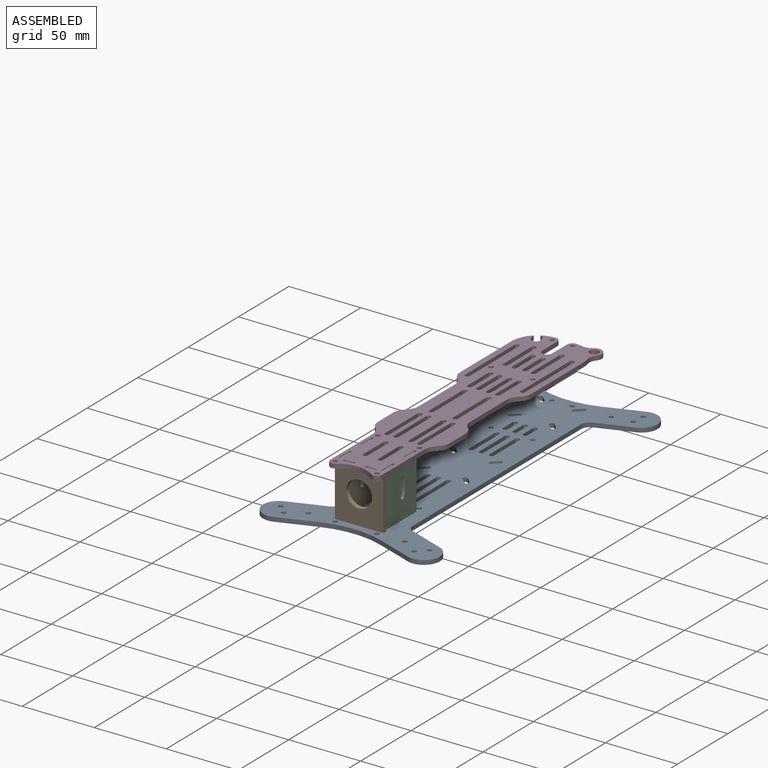
[diagram: assembled view]
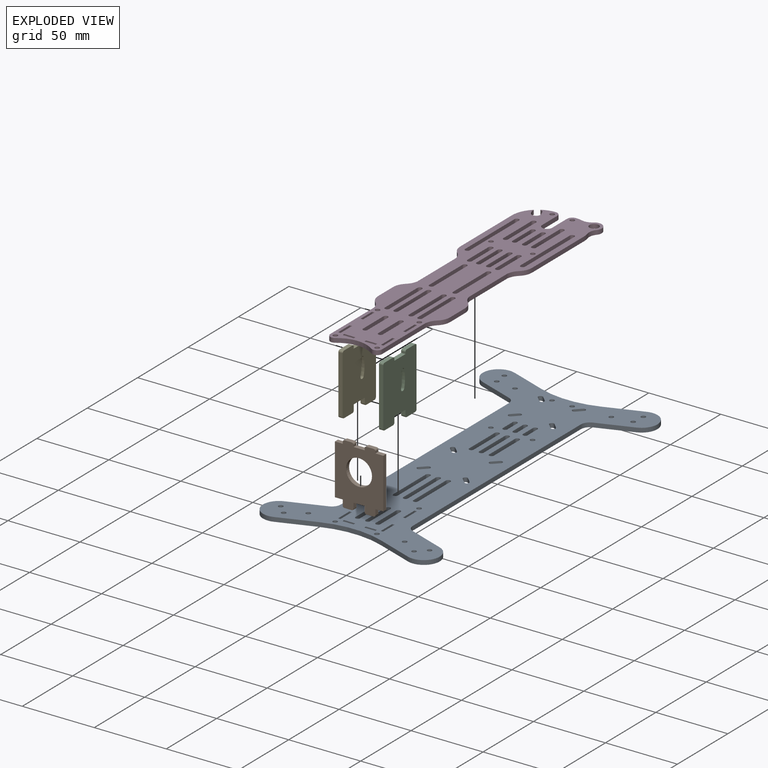
[diagram: exploded view]
GUIDED TOUR — MATED ASSEMBLY (Onshape document d694a171f62acf06d672b1ca, AutoMate assembly d694a171f62acf06d672b1ca_0cfcfd3deaf819cb69442fb5_4f47affb7bc48a1302ed9075_default)

This assembly has 5 components, labeled P0..P4 below (a component is one placed occurrence of a part; the same part can appear more than once), held together by 4 mates. A mate is a constraint between two components; its type names the relative motion it leaves free:
  FASTENED — locks the two components together rigidly (no relative motion).
Axis/direction vectors are unit vectors and 'through' points are millimeter coordinates, both in the assembly's world frame.

MATES
  1. FASTENED "Fastened 4": P3 <-> P1, direction (0.000, 0.000, -1.000) through (-141.13, -87.64, 19.75) mm
  2. FASTENED "Fastened 3": P0 <-> P4, direction (0.000, 0.000, 1.000) through (-145.51, -74.69, -15.25) mm
  3. FASTENED "Fastened 2": P0 <-> P2, direction (0.000, 0.000, 1.000) through (-114.21, -63.84, -15.25) mm
  4. FASTENED "Fastened 1": P1 <-> P0, direction (0.000, 0.000, -1.000) through (-118.43, -87.64, -15.25) mm

ASSEMBLY ORDER
  1. P3 — the base component [order verified]
  2. P0 [order verified]
  3. P1 [order verified]
  4. P4 [order verified]
  5. P2 [order verified]
Order-tag legend:
  [order verified] — this step's position reverses a verified removal order: the component was checked to insert without passing through the ones already placed.

Of the 5 components, 3 carry the full construction recipe — the FeatureScript program that regenerates the part's solid from scratch; the rest are supplied as boundary geometry only.
Each toured component is shown spotlighted twice — in the assembled view, then in the exploded view, where a leader line traces a displaced component back to its assembled socket (saturated green if recipe-attached, orange if geometry-only; every other component desaturated gray) — followed by its recipe or geometry summary and the mates that hold it.
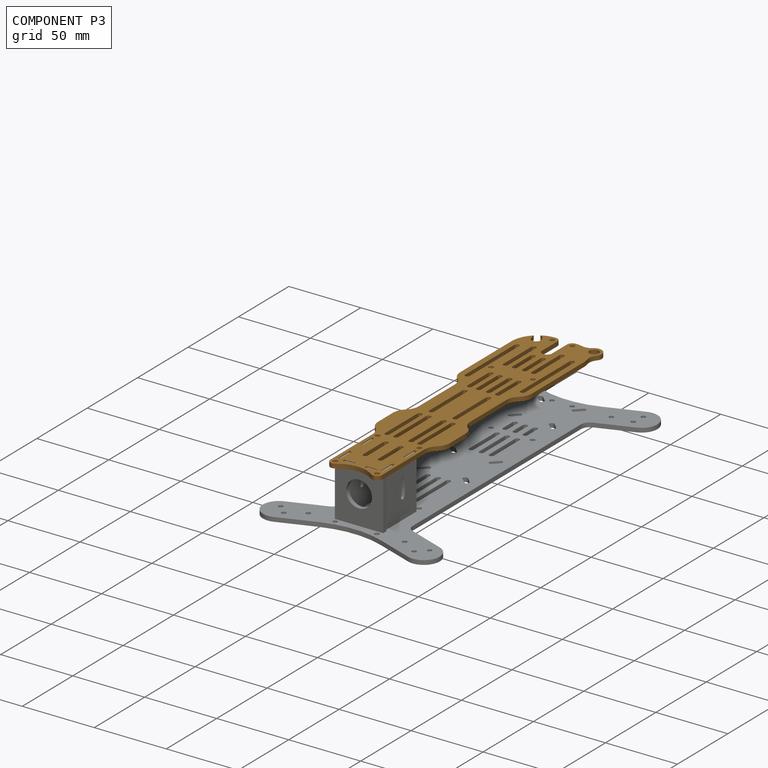
[diagram: component P3 — assembled]
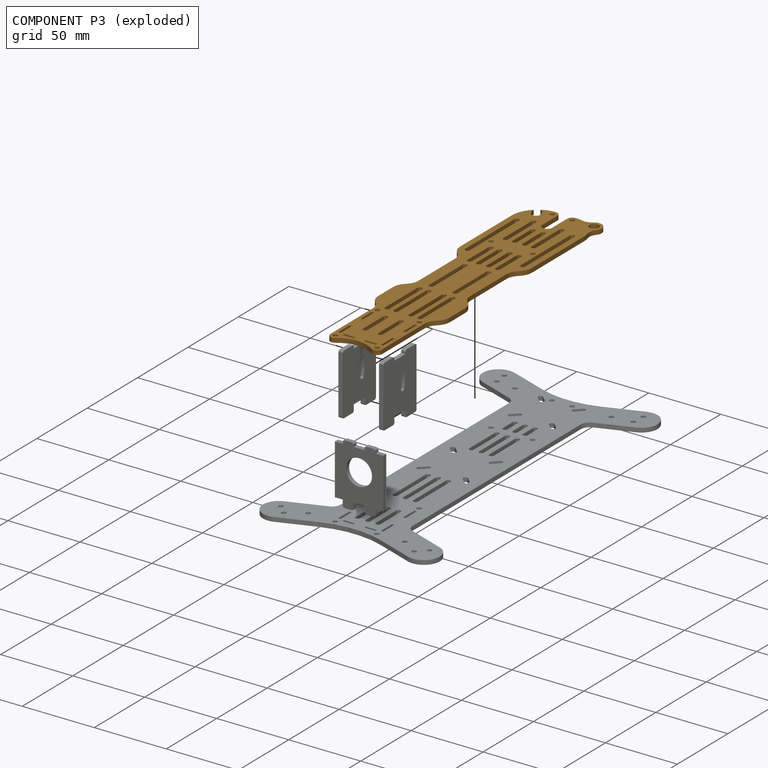
[diagram: component P3 — exploded]
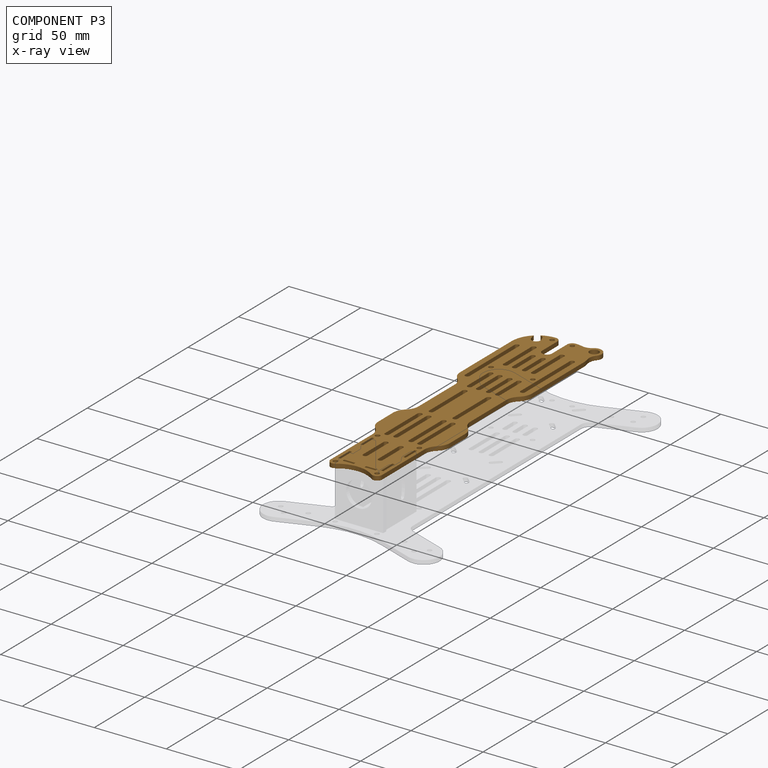
[diagram: component P3 — x-ray view]
COMPONENT P3 — geometry summary (no construction recipe available for this part):
  bounding box: 213.5 x 52.1 x 3.0 mm
  B-rep topology: 1 solid, 151 faces, 894 edges
  volume: 20496 mm^3 (61% of its bounding box)
  symmetry: mirror-symmetric across its z mid-plane
Held by: FASTENED mate "Fastened 4" to P1.
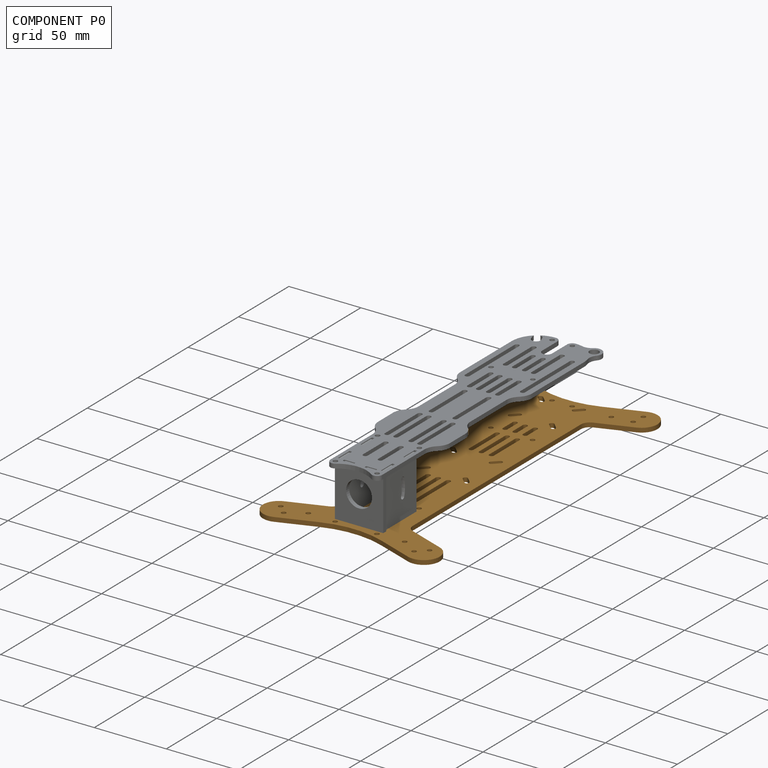
[diagram: component P0 — assembled]
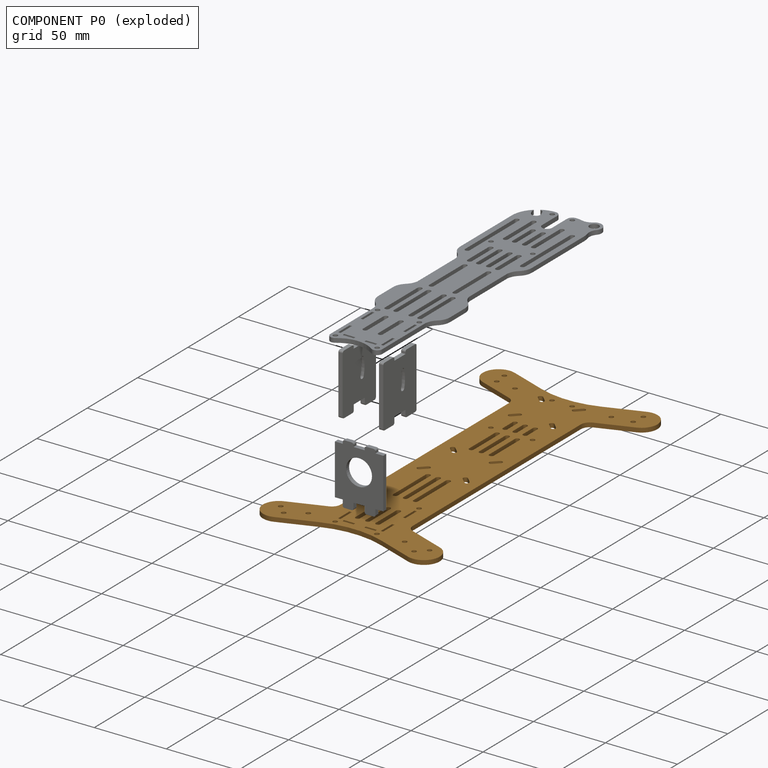
[diagram: component P0 — exploded]
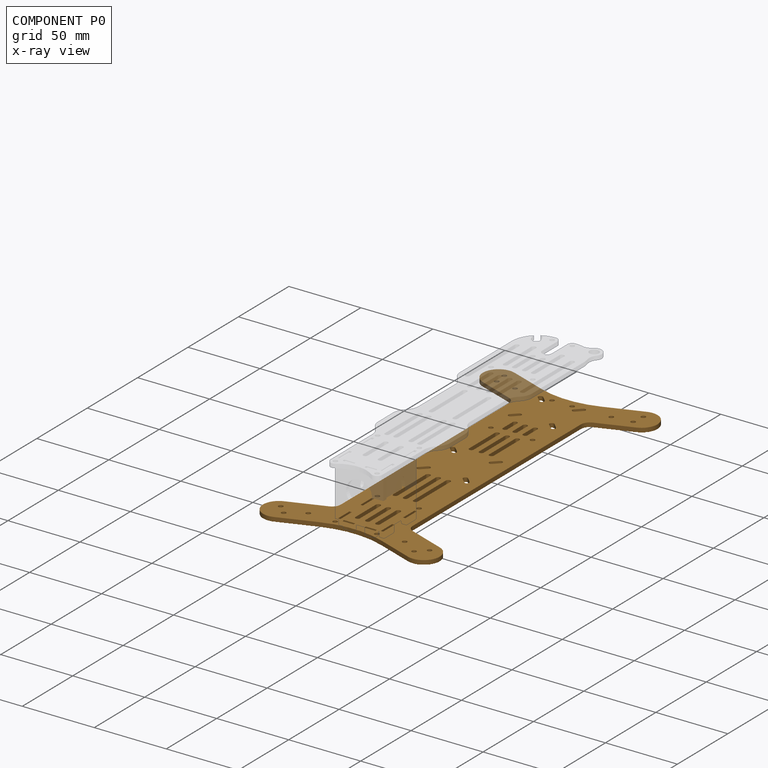
[diagram: component P0 — x-ray view]
COMPONENT P0 — geometry summary (no construction recipe available for this part):
  bounding box: 239.0 x 122.7 x 3.0 mm
  B-rep topology: 1 solid, 146 faces, 864 edges
  volume: 37556 mm^3 (43% of its bounding box)
  symmetry: 2-fold rotationally symmetric about the y axis; mirror-symmetric across its x mid-plane, z mid-plane
Held by: FASTENED mate "Fastened 3" to P4; FASTENED mate "Fastened 2" to P2; FASTENED mate "Fastened 1" to P1.
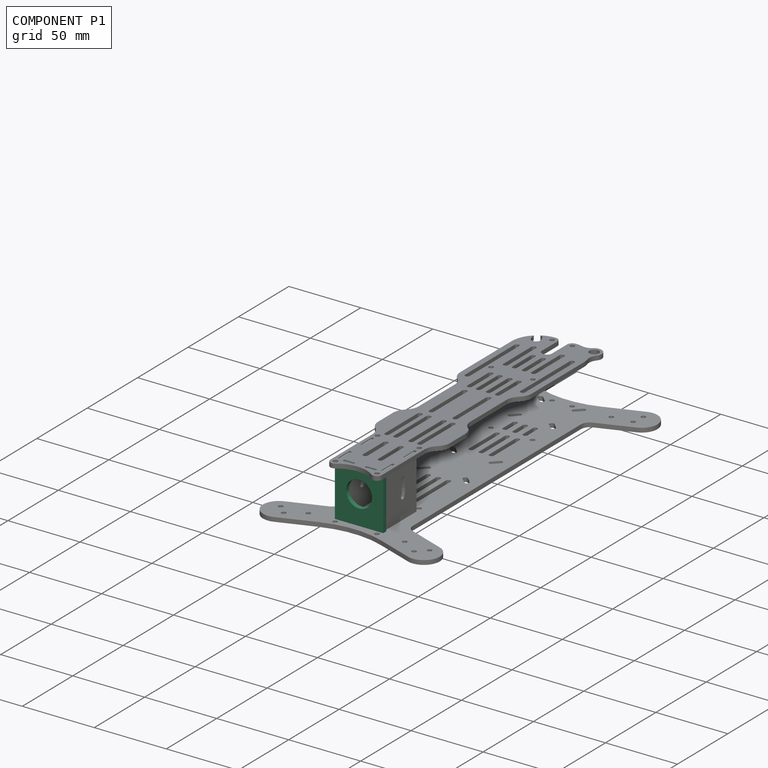
[diagram: component P1 — assembled]
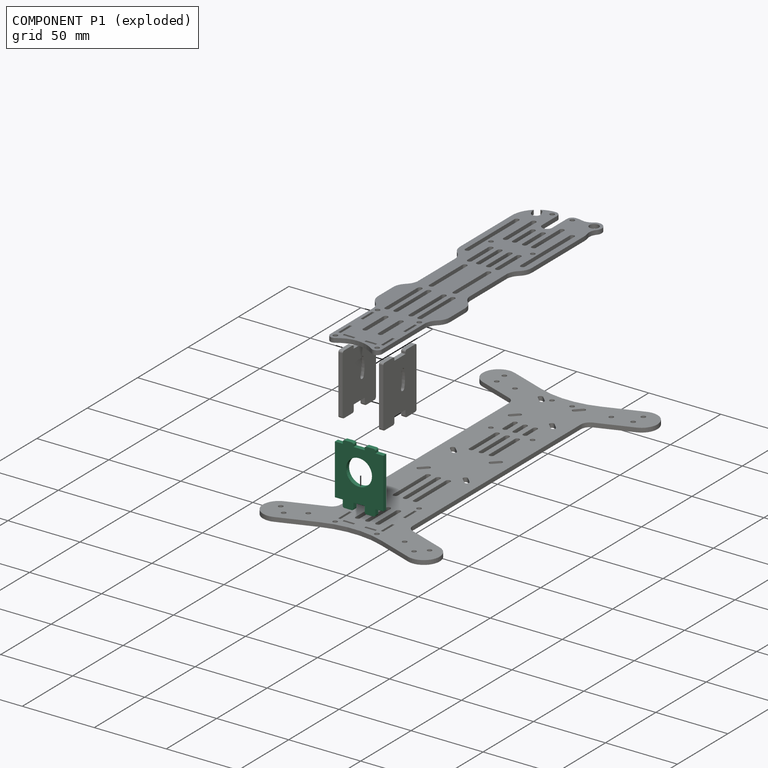
[diagram: component P1 — exploded]
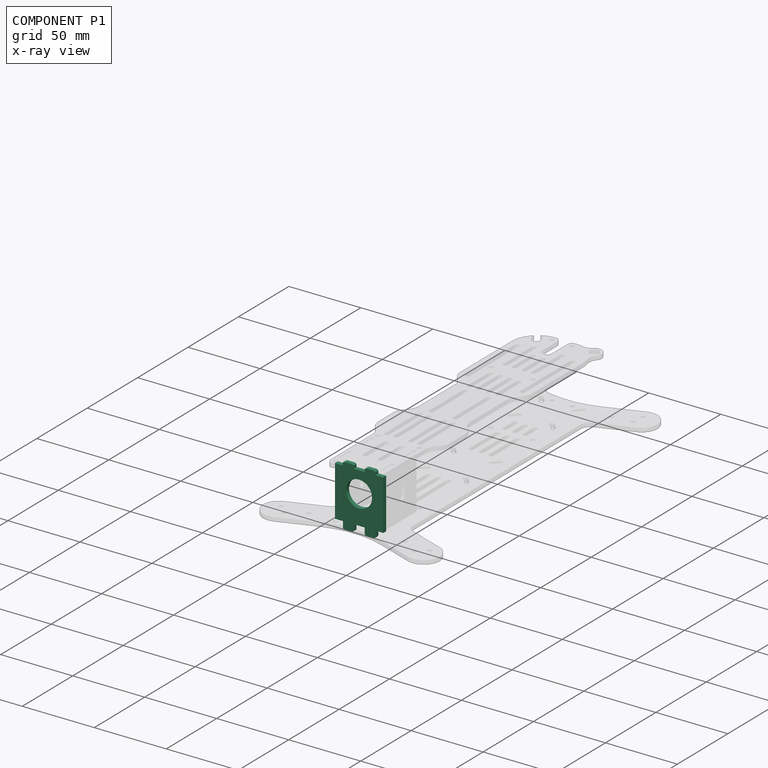
[diagram: component P1 — x-ray view]
COMPONENT P1 — recipe-attached (CADFS 00114414, mesh-verified: the recipe's output STEP matches this component's geometry to below the mesh-comparison resolution (tessellation chordal tolerance ~0.0814 mm)).
Held by: FASTENED mate "Fastened 4" to P3; FASTENED mate "Fastened 1" to P0.
Construction recipe (FeatureScript — the CAD program that rebuilds this solid; sketch coordinates are in the units given by the * unit suffixes, e.g. mm):

FeatureScript 1511;
import(path : "onshape/std/geometry.fs", version : "1511.0");
import(path : "onshape/std/common.fs", version : "1511.0");
const mm = millimeter;
const VERTEX = EntityType.VERTEX;
const EDGE = EntityType.EDGE;
const FACE = EntityType.FACE;
const BODY = EntityType.BODY;
function v(x, y){return vector(x, y);}
function OD(order){return orderDisambiguation(order);}
function OSD(set){return originalSetDisambiguation(set);}
function TD(topology){return topologyDisambiguation(topology);}
function TDD(query){return trueDependencyDisambiguation(query);}
function sQuery(a, b, c) {return sketchEntityQuery(a, b, c);}

annotation { "Feature Type Name" : "Feature", "Feature Type Description" : "" }
export const myFeature = defineFeature(function(context is Context, id is Id, definition is map)
    precondition{}
    {
        {
            var Q0;
            Q0=qCreatedBy(makeId("Front.planeOp"),FACE);
            var sketch = newSketch(context, id + "F0", { "sketchPlane" : qUnion([Q0])});
            skLineSegment(sketch, "E0.bottom", {"start": v(-16.8, 17.5) * mm, "end": v(-11.35, 17.5) * mm});
            skLineSegment(sketch, "E0.top", {"start": v(-16.8, -17.5) * mm, "end": v(-11.35, -17.5) * mm});
            skLineSegment(sketch, "E0.left", {"start": v(-16.8, 17.5) * mm, "end": v(-16.8, -17.5) * mm});
            skLineSegment(sketch, "E0.right", {"start": v(16.8, 17.5) * mm, "end": v(16.8, -17.5) * mm});
            skPoint(sketch, "E0.middle", {"position": v(0, 0) * mm});
            skLineSegment(sketch, "E1", {"start": v(-11.35, 18.75) * mm, "end": v(-11.35, 17.5) * mm});
            skLineSegment(sketch, "E2", {"start": v(11.35, 18.75) * mm, "end": v(11.35, 17.5) * mm});
            skLineSegment(sketch, "E3", {"start": v(-11.35, -17.5) * mm, "end": v(-11.35, -21.25) * mm});
            skLineSegment(sketch, "E4", {"start": v(11.35, -17.5) * mm, "end": v(11.35, -21.25) * mm});
            skLineSegment(sketch, "E5.trimOffspring", {"start": v(11.35, -17.5) * mm, "end": v(16.8, -17.5) * mm});
            skLineSegment(sketch, "E6.trimOffspring", {"start": v(11.35, 17.5) * mm, "end": v(16.8, 17.5) * mm});
            skLineSegment(sketch, "E7", {"start": v(-3.85, 17.5) * mm, "end": v(3.85, 17.5) * mm});
            skLineSegment(sketch, "E8", {"start": v(-3.85, -17.5) * mm, "end": v(3.85, -17.5) * mm});
            skLineSegment(sketch, "E9", {"start": v(-3.85, 18.75) * mm, "end": v(-3.85, 17.5) * mm});
            skLineSegment(sketch, "E10", {"start": v(3.85, 18.75) * mm, "end": v(3.85, 17.5) * mm});
            skPoint(sketch, "E10.endSnap0", {"position": v(0, 17.5) * mm});
            skLineSegment(sketch, "E11", {"start": v(-3.85, -17.5) * mm, "end": v(-3.85, -21.25) * mm});
            skLineSegment(sketch, "E12", {"start": v(3.85, -17.5) * mm, "end": v(3.85, -21.25) * mm});
            skPoint(sketch, "E13", {"position": v(-11.35, 18.75) * mm});
            skPoint(sketch, "E14", {"position": v(-3.85, 18.75) * mm});
            skPoint(sketch, "E15", {"position": v(3.85, 18.75) * mm});
            skPoint(sketch, "E16", {"position": v(11.35, 18.75) * mm});
            skPoint(sketch, "E17", {"position": v(11.35, -21.25) * mm});
            skPoint(sketch, "E18", {"position": v(3.85, -21.25) * mm});
            skPoint(sketch, "E19", {"position": v(-3.85, -21.25) * mm});
            skPoint(sketch, "E20", {"position": v(-11.35, -21.25) * mm});
            skPoint(sketch, "E21", {"position": v(-10.1, 20) * mm});
            skPoint(sketch, "E22", {"position": v(-5.1, 20) * mm});
            skPoint(sketch, "E23", {"position": v(5.1, 20) * mm});
            skPoint(sketch, "E24", {"position": v(10.1, 20) * mm});
            skPoint(sketch, "E25", {"position": v(-10.1, -22.5) * mm});
            skPoint(sketch, "E26", {"position": v(-5.1, -22.5) * mm});
            skPoint(sketch, "E27", {"position": v(5.1, -22.5) * mm});
            skPoint(sketch, "E28", {"position": v(10.1, -22.5) * mm});
            skLineSegment(sketch, "E29", {"start": v(-10.1, 20) * mm, "end": v(-5.1, 20) * mm});
            skLineSegment(sketch, "E30", {"start": v(5.1, 20) * mm, "end": v(10.1, 20) * mm});
            skLineSegment(sketch, "E31", {"start": v(-10.1, -22.5) * mm, "end": v(-5.1, -22.5) * mm});
            skLineSegment(sketch, "E32", {"start": v(5.1, -22.5) * mm, "end": v(10.1, -22.5) * mm});
            skArc(sketch, "E33", {"start": v(-10.1, 20) * mm, "mid": v(-10.98, 19.63) * mm, "end": v(-11.35, 18.75) * mm});
            skArc(sketch, "E34", {"start": v(-5.1, 20) * mm, "mid": v(-4.22, 19.63) * mm, "end": v(-3.85, 18.75) * mm});
            skArc(sketch, "E35", {"start": v(5.1, 20) * mm, "mid": v(4.22, 19.63) * mm, "end": v(3.85, 18.75) * mm});
            skArc(sketch, "E36", {"start": v(10.1, 20) * mm, "mid": v(10.98, 19.63) * mm, "end": v(11.35, 18.75) * mm});
            skArc(sketch, "E37", {"start": v(-10.1, -22.5) * mm, "mid": v(-10.98, -22.13) * mm, "end": v(-11.35, -21.25) * mm});
            skArc(sketch, "E38", {"start": v(-5.1, -22.5) * mm, "mid": v(-4.22, -22.13) * mm, "end": v(-3.85, -21.25) * mm});
            skArc(sketch, "E39", {"start": v(5.1, -22.5) * mm, "mid": v(4.22, -22.13) * mm, "end": v(3.85, -21.25) * mm});
            skArc(sketch, "E40", {"start": v(10.1, -22.5) * mm, "mid": v(10.98, -22.13) * mm, "end": v(11.35, -21.25) * mm});
            skLineSegment(sketch, "E41", {"start": v(-16.8, 2.5) * mm, "end": v(16.8, 2.5) * mm});
            skPoint(sketch, "E41.endSnap0", {"position": v(16.8, 0) * mm});
            skPoint(sketch, "E42", {"position": v(0, 2.5) * mm});
            skCircle(sketch, "E43", {"center": v(0, 2.5) * mm, "radius": 9 * mm});
            skLineSegment(sketch, "E44", {"start": v(11.35, -21.25) * mm, "end": v(3.85, -21.25) * mm});
            skLineSegment(sketch, "E45", {"start": v(-3.85, -21.25) * mm, "end": v(-11.35, -21.25) * mm});
            skSolve(sketch);
        }
        {
            var Q0;
            {var subQ1=sQuery(id+"F0.wireOp",EDGE,"E0.bottom");Q0=makeQuery(id+"F0.imprint","IMPRINT",FACE,{"disambiguationData":[TD([[makeQuery(id+"F0.imprint","IMPRINT",EDGE,{"derivedFrom":subQ1}),-1.0]])]});}
            var Q1;
            {var subQ9=sQuery(id+"F0.wireOp",EDGE,"E0.top");Q1=makeQuery(id+"F0.imprint","IMPRINT",FACE,{"disambiguationData":[TD([[makeQuery(id+"F0.imprint","IMPRINT",EDGE,{"derivedFrom":subQ9}),1.0]])]});}
            var Q2;
            Q2=makeQuery(id+"F0.imprint","IMPRINT",FACE,{"disambiguationData":[TD([[makeQuery(id+"F0.imprint","IMPRINT",EDGE,{"derivedFrom":sQuery(id+"F0.wireOp",EDGE,"E31")}),1.0]])]});
            var Q3;
            Q3=makeQuery(id+"F0.imprint","IMPRINT",FACE,{"disambiguationData":[TD([[makeQuery(id+"F0.imprint","IMPRINT",EDGE,{"derivedFrom":sQuery(id+"F0.wireOp",EDGE,"E32")}),1.0]])]});
            extrude(context, id + "F1", {"entities" : qUnion([Q0, Q1, Q2, Q3]), "depth" : 3 * mm});
        }
    });
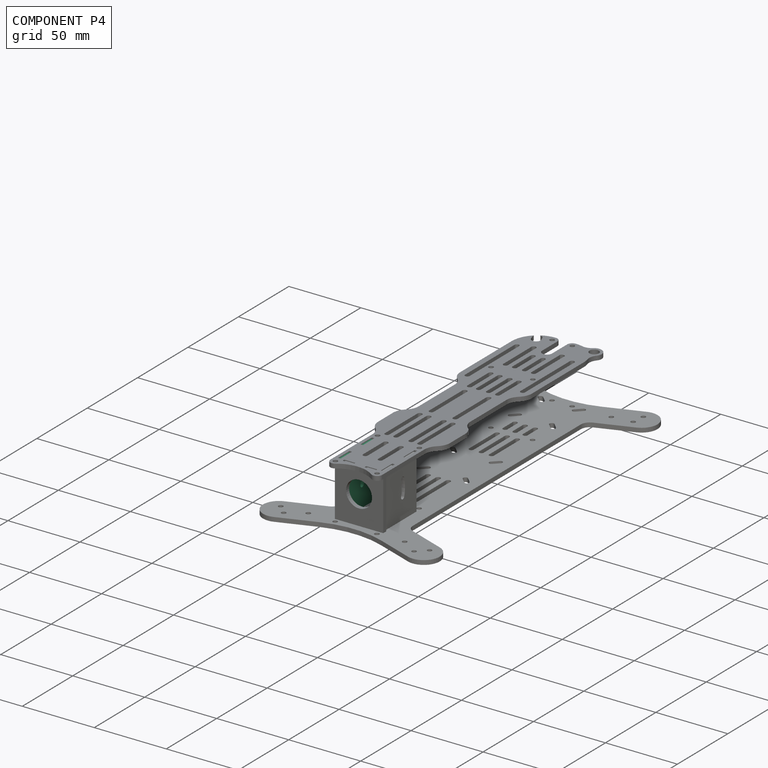
[diagram: component P4 — assembled]
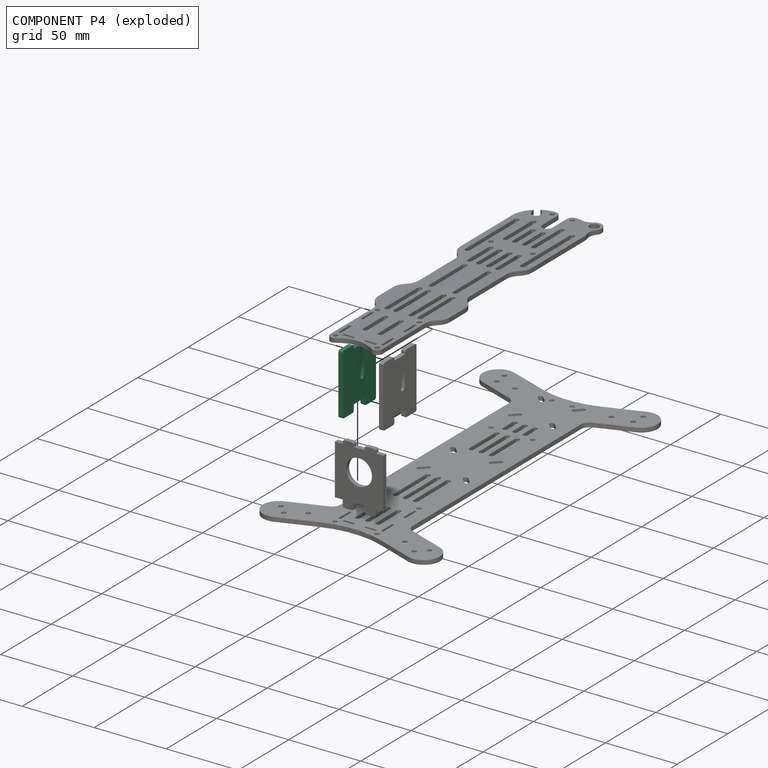
[diagram: component P4 — exploded]
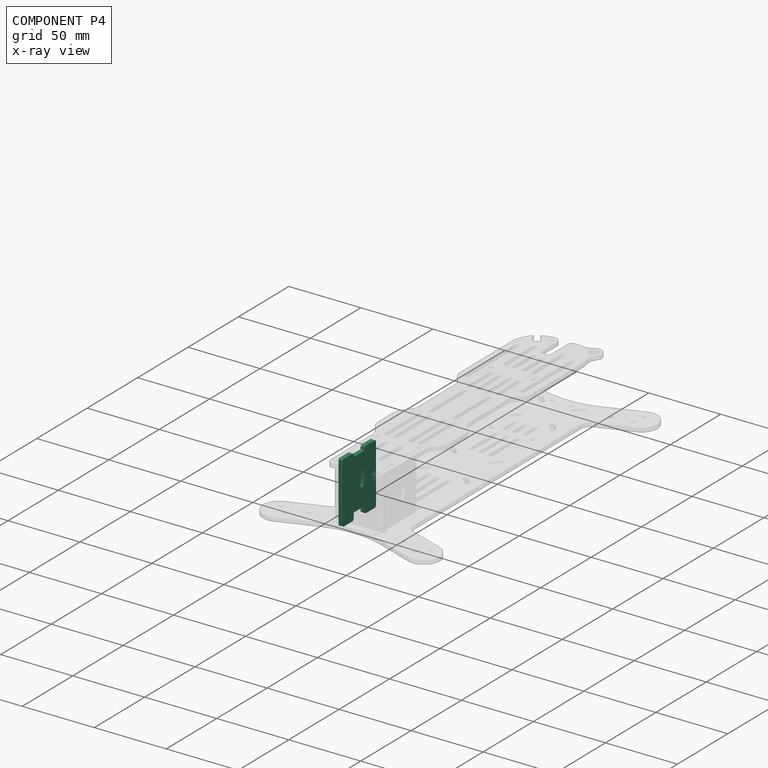
[diagram: component P4 — x-ray view]
COMPONENT P4 — same part as P2 (CADFS 00114415); its construction recipe is shown at P2.
Held by: FASTENED mate "Fastened 3" to P0.
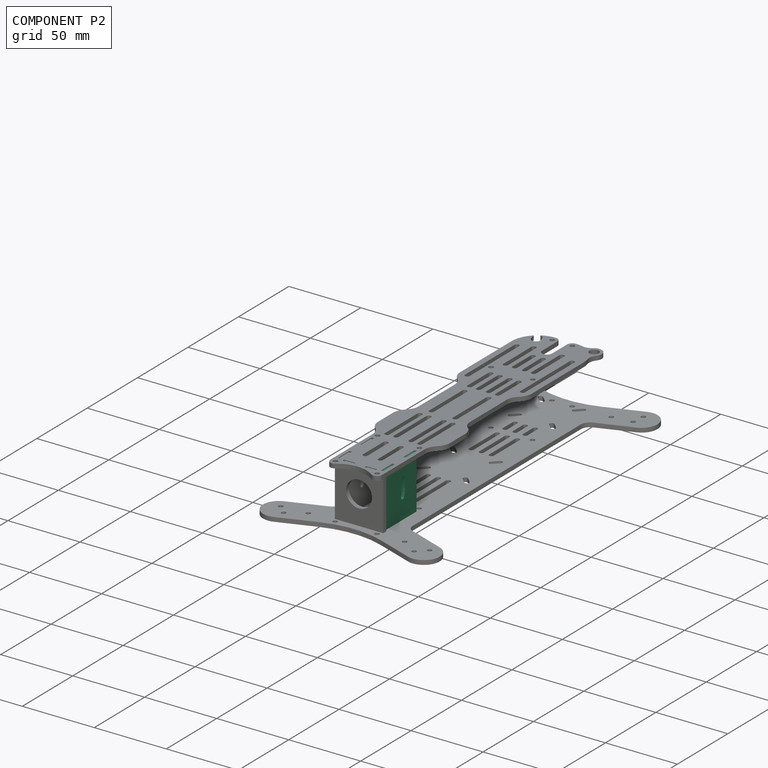
[diagram: component P2 — assembled]
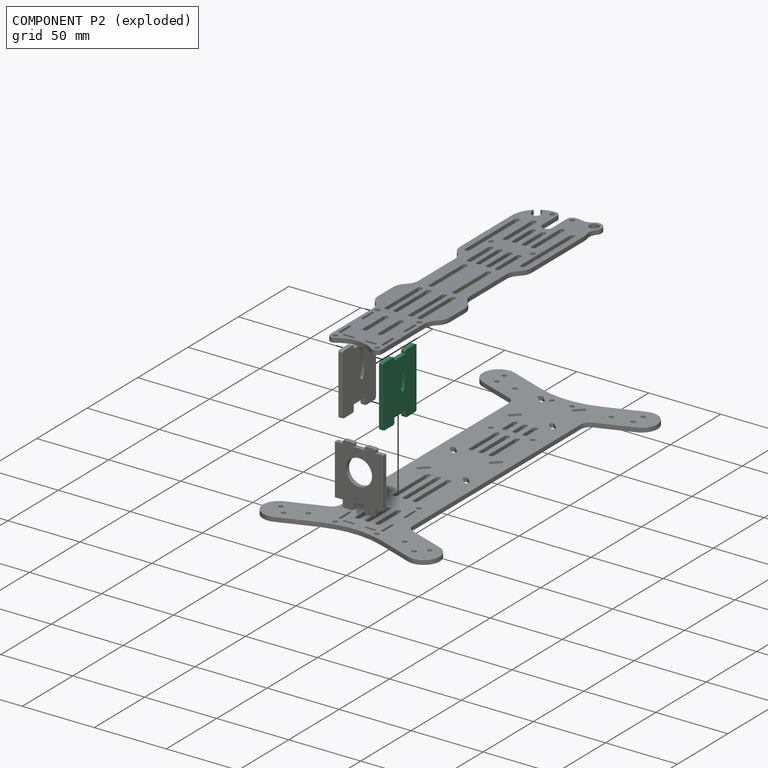
[diagram: component P2 — exploded]
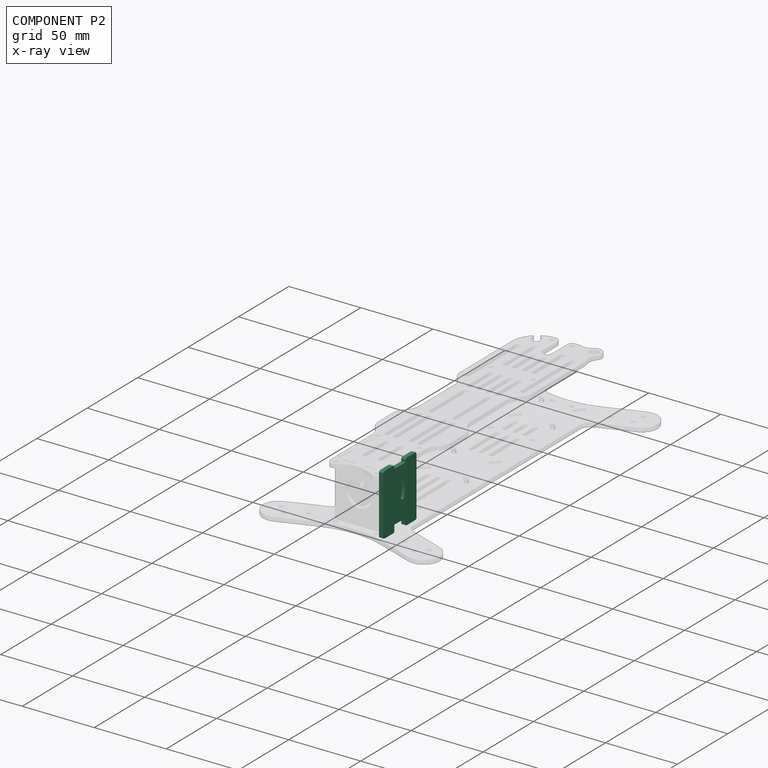
[diagram: component P2 — x-ray view]
COMPONENT P2 — recipe-attached (CADFS 00114415, mesh-verified: the recipe's output STEP matches this component's geometry to below the mesh-comparison resolution (tessellation chordal tolerance ~0.0808 mm)).
Held by: FASTENED mate "Fastened 2" to P0.
Construction recipe (FeatureScript — the CAD program that rebuilds this solid; sketch coordinates are in the units given by the * unit suffixes, e.g. mm):

FeatureScript 1511;
import(path : "onshape/std/geometry.fs", version : "1511.0");
import(path : "onshape/std/common.fs", version : "1511.0");
const mm = millimeter;
const VERTEX = EntityType.VERTEX;
const EDGE = EntityType.EDGE;
const FACE = EntityType.FACE;
const BODY = EntityType.BODY;
function v(x, y){return vector(x, y);}
function OD(order){return orderDisambiguation(order);}
function OSD(set){return originalSetDisambiguation(set);}
function TD(topology){return topologyDisambiguation(topology);}
function TDD(query){return trueDependencyDisambiguation(query);}
function sQuery(a, b, c) {return sketchEntityQuery(a, b, c);}

annotation { "Feature Type Name" : "Feature", "Feature Type Description" : "" }
export const myFeature = defineFeature(function(context is Context, id is Id, definition is map)
    precondition{}
    {
        {
            var Q0;
            Q0=qCreatedBy(makeId("Right.planeOp"),FACE);
            var sketch = newSketch(context, id + "F0", { "sketchPlane" : qUnion([Q0])});
            skPoint(sketch, "E0.middle", {"position": v(0, 0) * mm});
            skLineSegment(sketch, "E1", {"start": v(-16.5, 2.5) * mm, "end": v(1.88, 2.82) * mm});
            skLineSegment(sketch, "E2", {"start": v(-16.49, 2.51) * mm, "end": v(1.17, -2.55) * mm});
            skLineSegment(sketch, "E3", {"start": v(-16.5, 2.5) * mm, "end": v(1.17, 7.56) * mm});
            skArc(sketch, "E4", {"start": v(4.3, 8.46) * mm, "mid": v(2.28, 9.57) * mm, "end": v(1.17, 7.56) * mm});
            skArc(sketch, "E5", {"start": v(1.17, -2.55) * mm, "mid": v(2.29, -4.56) * mm, "end": v(4.3, -3.45) * mm});
            skPoint(sketch, "E6", {"position": v(1.88, 2.82) * mm});
            skPoint(sketch, "E7", {"position": v(1.17, 7.56) * mm});
            skPoint(sketch, "E8", {"position": v(1.17, -2.55) * mm});
            skArc(sketch, "E9", {"start": v(4.3, -3.45) * mm, "mid": v(5.13, 2.5) * mm, "end": v(4.3, 8.46) * mm});
            skArc(sketch, "E10", {"start": v(1.17, -2.55) * mm, "mid": v(1.88, 2.5) * mm, "end": v(1.17, 7.56) * mm});
            skPoint(sketch, "E11.end.orphan", {"position": v(5.13, 2.82) * mm});
            skLineSegment(sketch, "E12.bottom", {"start": v(-5.5, 17.5) * mm, "end": v(5.5, 17.5) * mm});
            skLineSegment(sketch, "E12.top", {"start": v(-15.25, 20) * mm, "end": v(-6.75, 20) * mm});
            skLineSegment(sketch, "E12.left", {"start": v(-16.5, 17.5) * mm, "end": v(-16.5, 18.75) * mm});
            skLineSegment(sketch, "E12.right", {"start": v(16.5, 17.5) * mm, "end": v(16.5, 18.75) * mm});
            skLineSegment(sketch, "E13.bottom", {"start": v(-5.5, -17.5) * mm, "end": v(5.5, -17.5) * mm});
            skLineSegment(sketch, "E13.top", {"start": v(-15.25, -22.5) * mm, "end": v(-6.75, -22.5) * mm});
            skLineSegment(sketch, "E13.left", {"start": v(-16.5, -17.5) * mm, "end": v(-16.5, -21.25) * mm});
            skLineSegment(sketch, "E13.right", {"start": v(16.5, -17.5) * mm, "end": v(16.5, -21.25) * mm});
            skLineSegment(sketch, "E14", {"start": v(5.5, 18.75) * mm, "end": v(5.5, 17.5) * mm});
            skLineSegment(sketch, "E15", {"start": v(-5.5, 18.75) * mm, "end": v(-5.5, 17.5) * mm});
            skLineSegment(sketch, "E16", {"start": v(5.5, -17.5) * mm, "end": v(5.5, -21.25) * mm});
            skLineSegment(sketch, "E17", {"start": v(-5.5, -17.5) * mm, "end": v(-5.5, -21.25) * mm});
            skLineSegment(sketch, "E18.trimOffspring", {"start": v(6.75, 20) * mm, "end": v(15.25, 20) * mm});
            skLineSegment(sketch, "E19.trimOffspring", {"start": v(6.81, -22.5) * mm, "end": v(15.31, -22.5) * mm});
            skPoint(sketch, "E20", {"position": v(-16.5, 18.75) * mm});
            skPoint(sketch, "E21", {"position": v(-5.5, 18.75) * mm});
            skPoint(sketch, "E22", {"position": v(5.5, 18.75) * mm});
            skPoint(sketch, "E23", {"position": v(16.5, 18.75) * mm});
            skPoint(sketch, "E24", {"position": v(16.5, -21.25) * mm});
            skPoint(sketch, "E25", {"position": v(5.5, -21.25) * mm});
            skPoint(sketch, "E26", {"position": v(-5.5, -21.25) * mm});
            skPoint(sketch, "E27", {"position": v(-16.5, -21.25) * mm});
            skPoint(sketch, "E28", {"position": v(15.31, -22.5) * mm});
            skPoint(sketch, "E29", {"position": v(6.81, -22.5) * mm});
            skPoint(sketch, "E30", {"position": v(-6.75, -22.5) * mm});
            skPoint(sketch, "E31", {"position": v(-15.25, -22.5) * mm});
            skPoint(sketch, "E32", {"position": v(-15.25, 20) * mm});
            skPoint(sketch, "E33", {"position": v(-6.75, 20) * mm});
            skPoint(sketch, "E34", {"position": v(6.75, 20) * mm});
            skPoint(sketch, "E35", {"position": v(15.25, 20) * mm});
            skArc(sketch, "E36", {"start": v(-15.25, 20) * mm, "mid": v(-16.13, 19.63) * mm, "end": v(-16.5, 18.75) * mm});
            skArc(sketch, "E37", {"start": v(-5.5, 18.75) * mm, "mid": v(-5.87, 19.63) * mm, "end": v(-6.75, 20) * mm});
            skArc(sketch, "E38", {"start": v(6.75, 20) * mm, "mid": v(5.87, 19.63) * mm, "end": v(5.5, 18.75) * mm});
            skArc(sketch, "E39", {"start": v(16.5, 18.75) * mm, "mid": v(16.13, 19.63) * mm, "end": v(15.25, 20) * mm});
            skArc(sketch, "E40", {"start": v(15.31, -22.5) * mm, "mid": v(16.16, -22.11) * mm, "end": v(16.5, -21.25) * mm});
            skArc(sketch, "E41", {"start": v(5.5, -21.25) * mm, "mid": v(5.89, -22.16) * mm, "end": v(6.81, -22.5) * mm});
            skArc(sketch, "E42", {"start": v(-6.75, -22.5) * mm, "mid": v(-5.87, -22.13) * mm, "end": v(-5.5, -21.25) * mm});
            skArc(sketch, "E43", {"start": v(-16.5, -21.25) * mm, "mid": v(-16.13, -22.13) * mm, "end": v(-15.25, -22.5) * mm});
            skLineSegment(sketch, "E44", {"start": v(16.5, 17.5) * mm, "end": v(5.5, 17.5) * mm});
            skLineSegment(sketch, "E45", {"start": v(-5.5, 17.5) * mm, "end": v(-16.5, 17.5) * mm});
            skLineSegment(sketch, "E46", {"start": v(16.5, -17.5) * mm, "end": v(5.5, -17.5) * mm});
            skLineSegment(sketch, "E47", {"start": v(-5.5, -17.5) * mm, "end": v(-16.5, -17.5) * mm});
            skLineSegment(sketch, "E48", {"start": v(1.88, 2.82) * mm, "end": v(5.13, 2.82) * mm});
            skPoint(sketch, "E49", {"position": v(3.5, 2.82) * mm});
            skLineSegment(sketch, "E50", {"start": v(1.17, 7.56) * mm, "end": v(4.3, 8.46) * mm});
            skLineSegment(sketch, "E51", {"start": v(1.17, -2.55) * mm, "end": v(4.3, -3.45) * mm});
            skLineSegment(sketch, "E52", {"start": v(-16.5, 17.5) * mm, "end": v(-16.5, -17.5) * mm});
            skLineSegment(sketch, "E53", {"start": v(16.5, 17.5) * mm, "end": v(16.5, -17.5) * mm});
            skSolve(sketch);
        }
        {
            var Q0;
            {var subQ2=sQuery(id+"F0.wireOp",EDGE,"E4");Q0=makeQuery(id+"F0.imprint","IMPRINT",FACE,{"disambiguationData":[TD([[makeQuery(id+"F0.imprint","IMPRINT",EDGE,{"derivedFrom":subQ2}),-1.0]])]});}
            var Q1;
            Q1=makeQuery(id+"F0.imprint","IMPRINT",FACE,{"disambiguationData":[TD([[makeQuery(id+"F0.imprint","IMPRINT",EDGE,{"derivedFrom":sQuery(id+"F0.wireOp",EDGE,"E13.top")}),1.0]])]});
            var Q2;
            Q2=makeQuery(id+"F0.imprint","IMPRINT",FACE,{"disambiguationData":[TD([[makeQuery(id+"F0.imprint","IMPRINT",EDGE,{"derivedFrom":sQuery(id+"F0.wireOp",EDGE,"E13.right")}),-1.0]])]});
            var Q3;
            Q3=makeQuery(id+"F0.imprint","IMPRINT",FACE,{"disambiguationData":[TD([[makeQuery(id+"F0.imprint","IMPRINT",EDGE,{"derivedFrom":sQuery(id+"F0.wireOp",EDGE,"E12.right")}),1.0]])]});
            var Q4;
            Q4=makeQuery(id+"F0.imprint","IMPRINT",FACE,{"disambiguationData":[TD([[makeQuery(id+"F0.imprint","IMPRINT",EDGE,{"derivedFrom":sQuery(id+"F0.wireOp",EDGE,"E12.top")}),-1.0]])]});
            var Q5;
            {var subQ3=sQuery(id+"F0.wireOp",EDGE,"E2");var subQ5=sQuery(id+"F0.wireOp",EDGE,"E3");var subQ6=makeQuery(id+"F0.imprint","INTERSECT",VERTEX,{"derivedFrom":[subQ3,subQ5]});Q5=makeQuery(id+"F0.imprint","IMPRINT",FACE,{"disambiguationData":[TD([[makeQuery(id+"F0.imprint","IMPRINT",EDGE,{"disambiguationData":[TD([[subQ6,-1.0]])],"derivedFrom":subQ3}),1.0]])]});}
            var Q6;
            {var subQ1=sQuery(id+"F0.wireOp",EDGE,"E1");var subQ3=sQuery(id+"F0.wireOp",EDGE,"E2");var subQ4=makeQuery(id+"F0.imprint","INTERSECT",VERTEX,{"derivedFrom":[subQ1,subQ3]});Q6=makeQuery(id+"F0.imprint","IMPRINT",FACE,{"disambiguationData":[TD([[makeQuery(id+"F0.imprint","IMPRINT",EDGE,{"disambiguationData":[TD([[subQ4,-1.0]])],"derivedFrom":subQ1}),-1.0]])]});}
            extrude(context, id + "F1", {"entities" : qUnion([Q0, Q1, Q2, Q3, Q4, Q5, Q6]), "depth" : 3 * mm});
        }
    });
PROVENANCE & LICENSES
Assembly (occurrences, transforms, mates, per-part STEP geometry): AutoMate dataset, Zenodo record 7776208, CC0.
Construction recipes: CADFS (HuggingFace VladPyatov/CADFS, CC-BY-4.0, layered over the ABC dataset), FeatureScript reconstruction programs keyed by ABC model id.
Join: ABC meta listings map ABC model id -> Onshape documentId; within a shared document, parts are matched by geometric signature (bounding-box dims + volume at 0.1% relative tolerance, exact B-rep face/solid counts).
Verification: 3 of this assembly's 5 components carry a recipe attachment, and every attachment is mesh-verified: the CADFS STEP and the AutoMate member STEP were compared as meshes in their shared local frame (symmetric sampled-point-to-mesh distance); worst across the 3 attachments: below the mesh-comparison resolution (tessellation chordal tolerance ~0.0814 mm) on a 54 mm part.
Renders: orthographic iso camera (az 35 / el 25); the floor grid conveys scale (grid pitch printed in each image; no ruler). In the exploded view each component is displaced by its stored offset vector: the offsets alone carry the explosion direction (mate normal/axis signs are not orientation cues and do not encode it), and separation distances are assigned per mate-chain, not proportionally to assembly-order depth.
